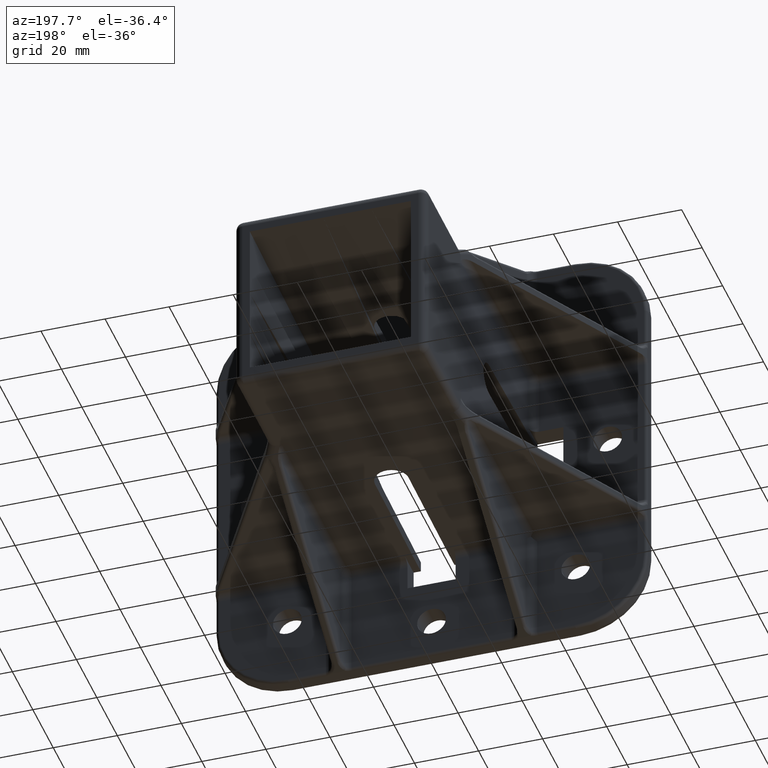
[diagram: clean part render]
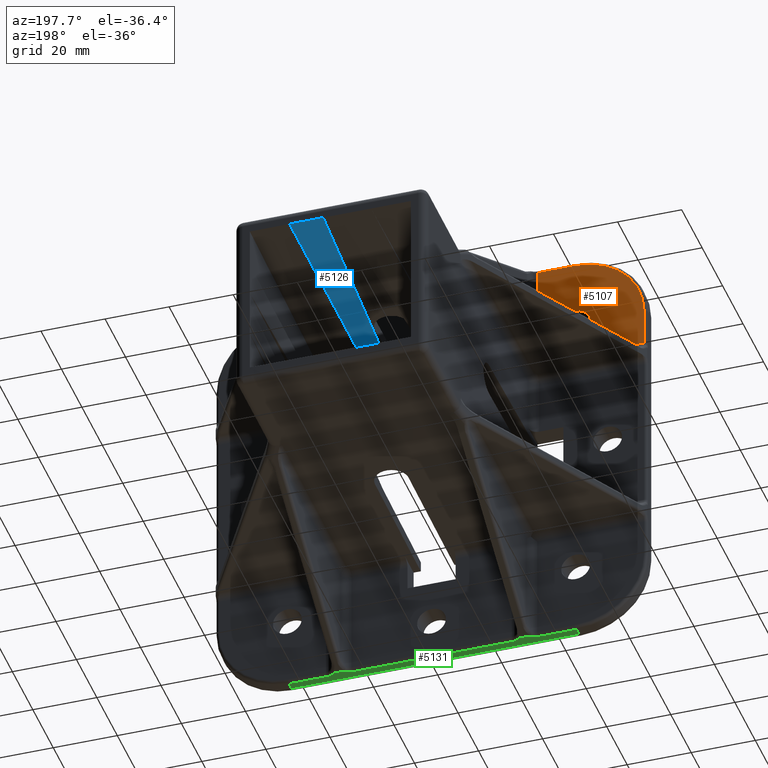
[diagram: same view with three faces highlighted in distinct colors, each labeled with its STEP entity id]
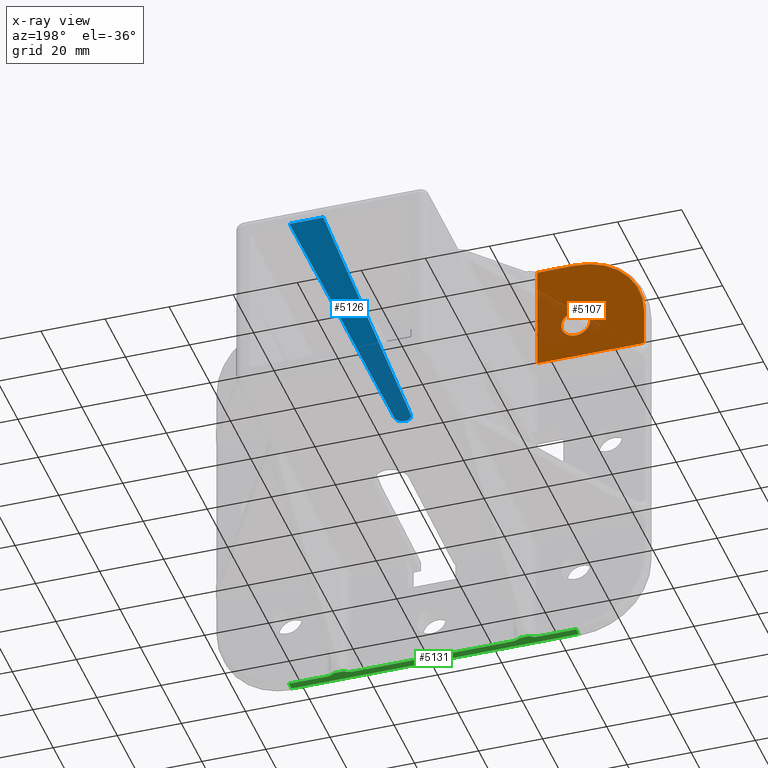
[diagram: x-ray of the same camera — body ghosted, the three highlighted faces saturated]
A machine part, auxiliary view with three faces highlighted in distinct colors.
The next image is the same camera in x-ray (body ghosted, the three faces saturated) — at least one of them is partly hidden behind the body in this view.
Their STEP definitions:

[orange] entity #5107 — the highlighted planar face has unit normal (0, -1, 0).
#56=FACE_BOUND('',#1593,.T.);
#163=PLANE('',#5439);
#318=LINE('',#7994,#758);
#319=LINE('',#7996,#759);
#320=LINE('',#8000,#760);
#321=LINE('',#8001,#761);
#758=VECTOR('',#6094,33.35);
#759=VECTOR('',#6095,11.8500000000007);
#760=VECTOR('',#6098,11.85);
#761=VECTOR('',#6099,33.3500000000003);
#1289=FACE_OUTER_BOUND('',#1592,.T.);
#1592=EDGE_LOOP('',(#3559,#3560,#3561,#3562,#3563));
#1593=EDGE_LOOP('',(#3564,#3565));
#1905=CIRCLE('',#5410,4.5);
#1915=CIRCLE('',#5440,21.5);
#1916=CIRCLE('',#5441,4.5);
#2193=VERTEX_POINT('',#7695);
#2194=VERTEX_POINT('',#7696);
#2265=VERTEX_POINT('',#7992);
#2266=VERTEX_POINT('',#7993);
#2267=VERTEX_POINT('',#7995);
#2268=VERTEX_POINT('',#7997);
#2269=VERTEX_POINT('',#7999);
#2685=EDGE_CURVE('',#2193,#2194,#1905,.T.);
#2758=EDGE_CURVE('',#2265,#2266,#318,.T.);
#2759=EDGE_CURVE('',#2266,#2267,#319,.T.);
#2760=EDGE_CURVE('',#2267,#2268,#1915,.T.);
#2761=EDGE_CURVE('',#2268,#2269,#320,.T.);
#2762=EDGE_CURVE('',#2269,#2265,#321,.T.);
#2763=EDGE_CURVE('',#2194,#2193,#1916,.T.);
#3559=ORIENTED_EDGE('',*,*,#2758,.T.);
#3560=ORIENTED_EDGE('',*,*,#2759,.T.);
#3561=ORIENTED_EDGE('',*,*,#2760,.T.);
#3562=ORIENTED_EDGE('',*,*,#2761,.T.);
#3563=ORIENTED_EDGE('',*,*,#2762,.T.);
#3564=ORIENTED_EDGE('',*,*,#2685,.F.);
#3565=ORIENTED_EDGE('',*,*,#2763,.F.);
#5107=ADVANCED_FACE('',(#1289,#56),#163,.F.);
#5410=AXIS2_PLACEMENT_3D('',#7697,#5999,#6000);
#5439=AXIS2_PLACEMENT_3D('',#7991,#6092,#6093);
#5440=AXIS2_PLACEMENT_3D('',#7998,#6096,#6097);
#5441=AXIS2_PLACEMENT_3D('',#8002,#6100,#6101);
#5999=DIRECTION('center_axis',(0.,1.,0.));
#6000=DIRECTION('ref_axis',(0.,0.,-1.));
#6092=DIRECTION('center_axis',(0.,-1.,0.));
#6093=DIRECTION('ref_axis',(0.,0.,-1.));
#6094=DIRECTION('',(-1.,0.,-1.04744440165294E-14));
#6095=DIRECTION('',(0.,0.,1.));
#6096=DIRECTION('center_axis',(0.,1.,0.));
#6097=DIRECTION('ref_axis',(9.68217754033567E-16,0.,-1.));
#6098=DIRECTION('',(1.,0.,0.));
#6099=DIRECTION('',(0.,0.,-1.));
#6100=DIRECTION('center_axis',(0.,1.,0.));
#6101=DIRECTION('ref_axis',(0.,0.,-1.));
#7695=CARTESIAN_POINT('',(-45.,6.,40.5));
#7696=CARTESIAN_POINT('',(-45.,6.,49.5));
#7697=CARTESIAN_POINT('Origin',(-45.,6.,45.));
#7991=CARTESIAN_POINT('Origin',(-67.35,6.,-67.35));
#7992=CARTESIAN_POINT('',(-33.,6.,32.9999999999997));
#7993=CARTESIAN_POINT('',(-66.35,6.,32.9999999999993));
#7994=CARTESIAN_POINT('',(-67.350000000001,6.,32.9999999999993));
#7995=CARTESIAN_POINT('',(-66.35,6.,44.85));
#7996=CARTESIAN_POINT('',(-66.35,6.,-67.35));
#7997=CARTESIAN_POINT('',(-44.85,6.,66.35));
#7998=CARTESIAN_POINT('Origin',(-44.85,6.,44.85));
#7999=CARTESIAN_POINT('',(-33.,6.,66.35));
#8000=CARTESIAN_POINT('',(-67.35,6.,66.35));
#8001=CARTESIAN_POINT('',(-33.,6.,31.1433067527983));
#8002=CARTESIAN_POINT('Origin',(-45.,6.,45.));

[blue] entity #5126 — the highlighted planar face has unit normal (0, 0.0035, 1).
#182=PLANE('',#5496);
#439=LINE('',#8362,#879);
#505=LINE('',#8507,#945);
#506=LINE('',#8512,#946);
#507=LINE('',#8514,#947);
#508=LINE('',#8515,#948);
#879=VECTOR('',#6309,0.127588583213364);
#945=VECTOR('',#6395,102.500624468881);
#946=VECTOR('',#6400,102.271620107088);
#947=VECTOR('',#6401,0.500003046189635);
#948=VECTOR('',#6402,10.4766129350791);
#1308=FACE_OUTER_BOUND('',#1626,.T.);
#1626=EDGE_LOOP('',(#3811,#3812,#3813,#3814,#3815,#3816,#3817));
#1941=CIRCLE('',#5497,2.50000761550896);
#1942=CIRCLE('',#5498,2.50000663873221);
#2403=VERTEX_POINT('',#8359);
#2404=VERTEX_POINT('',#8361);
#2472=VERTEX_POINT('',#8505);
#2473=VERTEX_POINT('',#8506);
#2474=VERTEX_POINT('',#8509);
#2475=VERTEX_POINT('',#8511);
#2476=VERTEX_POINT('',#8513);
#2917=EDGE_CURVE('',#2403,#2404,#439,.T.);
#2989=EDGE_CURVE('',#2472,#2473,#505,.T.);
#2990=EDGE_CURVE('',#2472,#2404,#1941,.T.);
#2991=EDGE_CURVE('',#2403,#2474,#1942,.T.);
#2992=EDGE_CURVE('',#2474,#2475,#506,.T.);
#2993=EDGE_CURVE('',#2475,#2476,#507,.T.);
#2994=EDGE_CURVE('',#2476,#2473,#508,.T.);
#3811=ORIENTED_EDGE('',*,*,#2989,.F.);
#3812=ORIENTED_EDGE('',*,*,#2990,.T.);
#3813=ORIENTED_EDGE('',*,*,#2917,.F.);
#3814=ORIENTED_EDGE('',*,*,#2991,.T.);
#3815=ORIENTED_EDGE('',*,*,#2992,.T.);
#3816=ORIENTED_EDGE('',*,*,#2993,.T.);
#3817=ORIENTED_EDGE('',*,*,#2994,.T.);
#5126=ADVANCED_FACE('',(#1308),#182,.F.);
#5496=AXIS2_PLACEMENT_3D('',#8504,#6393,#6394);
#5497=AXIS2_PLACEMENT_3D('',#8508,#6396,#6397);
#5498=AXIS2_PLACEMENT_3D('',#8510,#6398,#6399);
#6309=DIRECTION('',(1.,0.,0.));
#6393=DIRECTION('center_axis',(0.,0.00349065141522374,0.99999390765779));
#6394=DIRECTION('ref_axis',(0.,-0.99999390765779,0.00349065141522329));
#6395=DIRECTION('',(2.37555773057258E-16,0.99999390765779,-0.00349065141522374));
#6396=DIRECTION('center_axis',(-5.51660009451191E-15,-0.00349065141521882,
-0.99999390765779));
#6397=DIRECTION('ref_axis',(3.04618965911398E-6,-0.999993907653151,0.00349065141520188));
#6398=DIRECTION('center_axis',(8.83720077018853E-15,-0.00349065141520901,
-0.999993907657791));
#6399=DIRECTION('ref_axis',(-0.998629705441858,-0.0523323804051995,0.000182675210632998));
#6400=DIRECTION('',(-0.0523356382677305,0.99862346742593,-0.00348586765694462));
#6401=DIRECTION('',(3.65626328299787E-17,0.99999390765779,-0.0034906514152236));
#6402=DIRECTION('',(1.,0.,0.));
#8359=CARTESIAN_POINT('',(10.0990243518655,0.,25.4665206315676));
#8361=CARTESIAN_POINT('',(10.2266129350788,0.,25.4665206315676));
#8362=CARTESIAN_POINT('',(-25.1,0.,25.4665206315676));
#8504=CARTESIAN_POINT('Origin',(-25.1,105.,25.1));
#8505=CARTESIAN_POINT('',(12.7266129350788,2.5,25.4577939498636));
#8506=CARTESIAN_POINT('',(12.7266129350789,105.,25.1000000000001));
#8507=CARTESIAN_POINT('',(12.7266129350789,105.,25.1));
#8508=CARTESIAN_POINT('Origin',(10.2266053195815,2.49999238459544,25.4577939764465));
#8509=CARTESIAN_POINT('',(7.60245051497904,2.36916010939262,25.4582506690954));
#8510=CARTESIAN_POINT('Origin',(10.0990314082189,2.49999140782628,25.4577939798561));
#8511=CARTESIAN_POINT('',(2.24999999999974,104.5,25.1017453363408));
#8512=CARTESIAN_POINT('',(7.70967994304372,0.32310073554375,25.4653927926567));
#8513=CARTESIAN_POINT('',(2.24999999999973,105.,25.1));
#8514=CARTESIAN_POINT('',(2.24999999999974,105.,25.1));
#8515=CARTESIAN_POINT('',(-25.1,105.,25.1));

[green] entity #5131 — the highlighted planar face has unit normal (0, 0, 1).
#187=PLANE('',#5517);
#301=LINE('',#7876,#741);
#306=LINE('',#7941,#746);
#533=LINE('',#8594,#973);
#534=LINE('',#8596,#974);
#535=LINE('',#8601,#975);
#536=LINE('',#8606,#976);
#537=LINE('',#8608,#977);
#538=LINE('',#8609,#978);
#741=VECTOR('',#6053,3.10102051443365);
#746=VECTOR('',#6066,3.10102051443363);
#973=VECTOR('',#6465,2.5);
#974=VECTOR('',#6466,11.85);
#975=VECTOR('',#6471,50.);
#976=VECTOR('',#6476,11.85);
#977=VECTOR('',#6477,2.5);
#978=VECTOR('',#6478,89.7);
#1313=FACE_OUTER_BOUND('',#1632,.T.);
#1632=EDGE_LOOP('',(#3861,#3862,#3863,#3864,#3865,#3866,#3867,#3868,#3869,
#3870,#3871,#3872));
#1957=CIRCLE('',#5518,3.5);
#1958=CIRCLE('',#5519,3.5);
#1959=CIRCLE('',#5520,3.5);
#1960=CIRCLE('',#5521,3.5);
#2235=VERTEX_POINT('',#7866);
#2236=VERTEX_POINT('',#7875);
#2247=VERTEX_POINT('',#7923);
#2248=VERTEX_POINT('',#7940);
#2510=VERTEX_POINT('',#8592);
#2511=VERTEX_POINT('',#8593);
#2512=VERTEX_POINT('',#8595);
#2513=VERTEX_POINT('',#8598);
#2514=VERTEX_POINT('',#8600);
#2515=VERTEX_POINT('',#8603);
#2516=VERTEX_POINT('',#8605);
#2517=VERTEX_POINT('',#8607);
#2727=EDGE_CURVE('',#2236,#2235,#301,.T.);
#2739=EDGE_CURVE('',#2248,#2247,#306,.T.);
#3033=EDGE_CURVE('',#2510,#2511,#533,.T.);
#3034=EDGE_CURVE('',#2511,#2512,#534,.T.);
#3035=EDGE_CURVE('',#2512,#2248,#1957,.T.);
#3036=EDGE_CURVE('',#2247,#2513,#1958,.T.);
#3037=EDGE_CURVE('',#2513,#2514,#535,.T.);
#3038=EDGE_CURVE('',#2514,#2236,#1959,.T.);
#3039=EDGE_CURVE('',#2235,#2515,#1960,.T.);
#3040=EDGE_CURVE('',#2515,#2516,#536,.T.);
#3041=EDGE_CURVE('',#2516,#2517,#537,.T.);
#3042=EDGE_CURVE('',#2517,#2510,#538,.T.);
#3861=ORIENTED_EDGE('',*,*,#3033,.T.);
#3862=ORIENTED_EDGE('',*,*,#3034,.T.);
#3863=ORIENTED_EDGE('',*,*,#3035,.T.);
#3864=ORIENTED_EDGE('',*,*,#2739,.T.);
#3865=ORIENTED_EDGE('',*,*,#3036,.T.);
#3866=ORIENTED_EDGE('',*,*,#3037,.T.);
#3867=ORIENTED_EDGE('',*,*,#3038,.T.);
#3868=ORIENTED_EDGE('',*,*,#2727,.T.);
#3869=ORIENTED_EDGE('',*,*,#3039,.T.);
#3870=ORIENTED_EDGE('',*,*,#3040,.T.);
#3871=ORIENTED_EDGE('',*,*,#3041,.T.);
#3872=ORIENTED_EDGE('',*,*,#3042,.T.);
#5131=ADVANCED_FACE('',(#1313),#187,.F.);
#5517=AXIS2_PLACEMENT_3D('',#8591,#6463,#6464);
#5518=AXIS2_PLACEMENT_3D('',#8597,#6467,#6468);
#5519=AXIS2_PLACEMENT_3D('',#8599,#6469,#6470);
#5520=AXIS2_PLACEMENT_3D('',#8602,#6472,#6473);
#5521=AXIS2_PLACEMENT_3D('',#8604,#6474,#6475);
#6053=DIRECTION('',(1.,0.,0.));
#6066=DIRECTION('',(1.,0.,0.));
#6463=DIRECTION('center_axis',(0.,0.,1.));
#6464=DIRECTION('ref_axis',(1.,0.,0.));
#6465=DIRECTION('',(0.,1.,0.));
#6466=DIRECTION('',(1.,0.,0.));
#6467=DIRECTION('center_axis',(0.,0.,1.));
#6468=DIRECTION('ref_axis',(1.,0.,0.));
#6469=DIRECTION('center_axis',(0.,0.,1.));
#6470=DIRECTION('ref_axis',(1.,0.,0.));
#6471=DIRECTION('',(1.,0.,0.));
#6472=DIRECTION('center_axis',(0.,0.,1.));
#6473=DIRECTION('ref_axis',(1.,0.,0.));
#6474=DIRECTION('center_axis',(0.,0.,1.));
#6475=DIRECTION('ref_axis',(1.,0.,0.));
#6476=DIRECTION('',(1.,0.,0.));
#6477=DIRECTION('',(0.,-1.,0.));
#6478=DIRECTION('',(-1.,0.,0.));
#7866=CARTESIAN_POINT('',(30.5505102572168,6.00000000000001,-67.35));
#7875=CARTESIAN_POINT('',(27.4494897427832,6.00000000000001,-67.35));
#7876=CARTESIAN_POINT('',(27.5,6.00000000000001,-67.35));
#7923=CARTESIAN_POINT('',(-27.4494897427832,6.00000000000001,-67.35));
#7940=CARTESIAN_POINT('',(-30.5505102572168,6.00000000000001,-67.35));
#7941=CARTESIAN_POINT('',(-30.5,6.00000000000001,-67.35));
#8591=CARTESIAN_POINT('Origin',(-67.35,6.,-67.35));
#8592=CARTESIAN_POINT('',(-44.85,2.5,-67.35));
#8593=CARTESIAN_POINT('',(-44.85,5.,-67.35));
#8594=CARTESIAN_POINT('',(-44.85,6.,-67.35));
#8595=CARTESIAN_POINT('',(-33.,5.,-67.35));
#8596=CARTESIAN_POINT('',(-67.35,5.,-67.35));
#8597=CARTESIAN_POINT('Origin',(-33.,8.5,-67.35));
#8598=CARTESIAN_POINT('',(-25.,5.,-67.35));
#8599=CARTESIAN_POINT('Origin',(-25.,8.5,-67.35));
#8600=CARTESIAN_POINT('',(25.,5.,-67.35));
#8601=CARTESIAN_POINT('',(-67.35,5.,-67.35));
#8602=CARTESIAN_POINT('Origin',(25.,8.5,-67.35));
#8603=CARTESIAN_POINT('',(33.,5.,-67.35));
#8604=CARTESIAN_POINT('Origin',(33.,8.5,-67.35));
#8605=CARTESIAN_POINT('',(44.85,5.,-67.35));
#8606=CARTESIAN_POINT('',(-67.35,5.,-67.35));
#8607=CARTESIAN_POINT('',(44.85,2.5,-67.35));
#8608=CARTESIAN_POINT('',(44.85,6.,-67.35));
#8609=CARTESIAN_POINT('',(-44.85,2.5,-67.35));